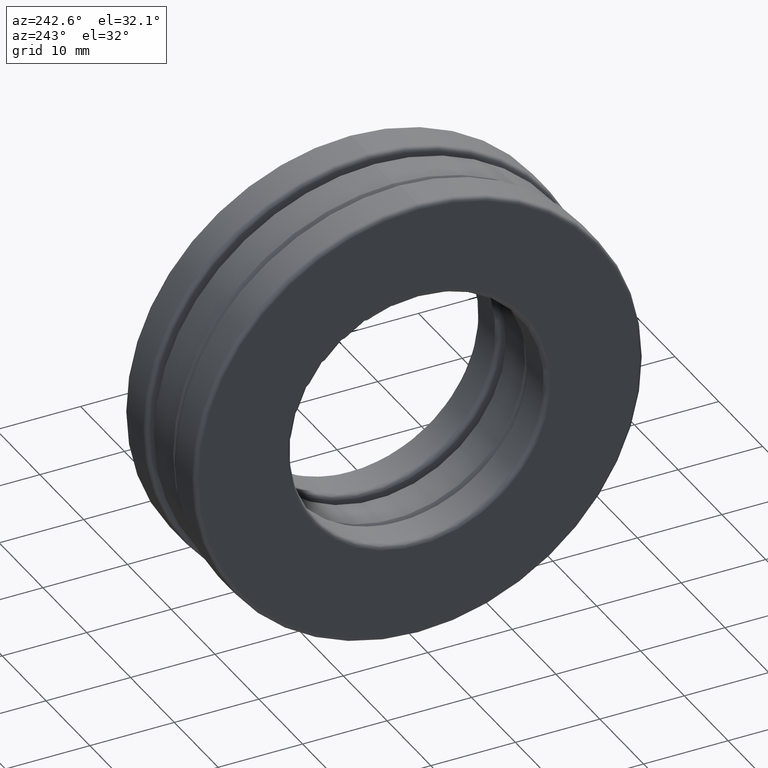
[diagram: clean part render]
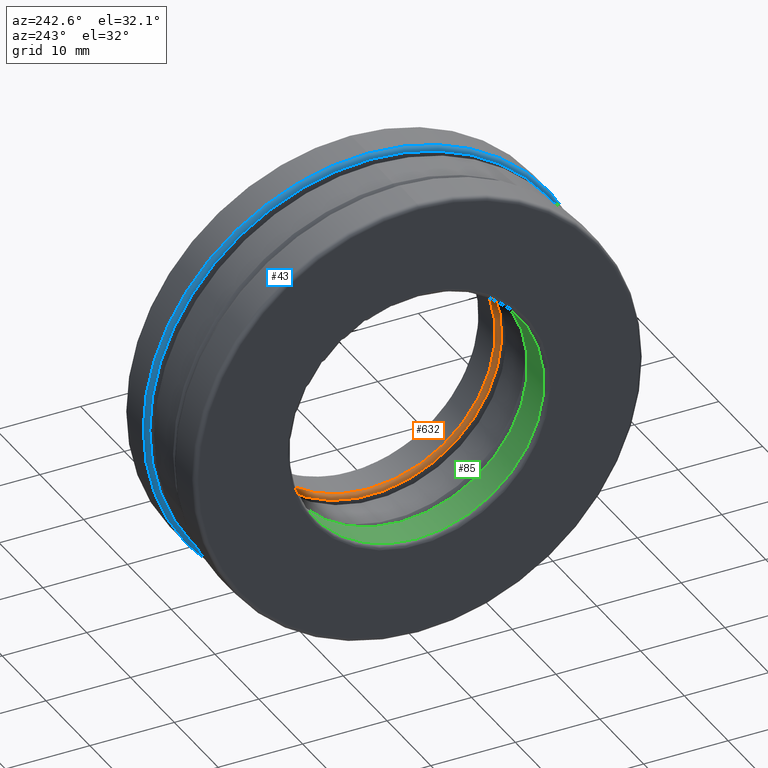
[diagram: same view with three faces highlighted in distinct colors, each labeled with its STEP entity id]
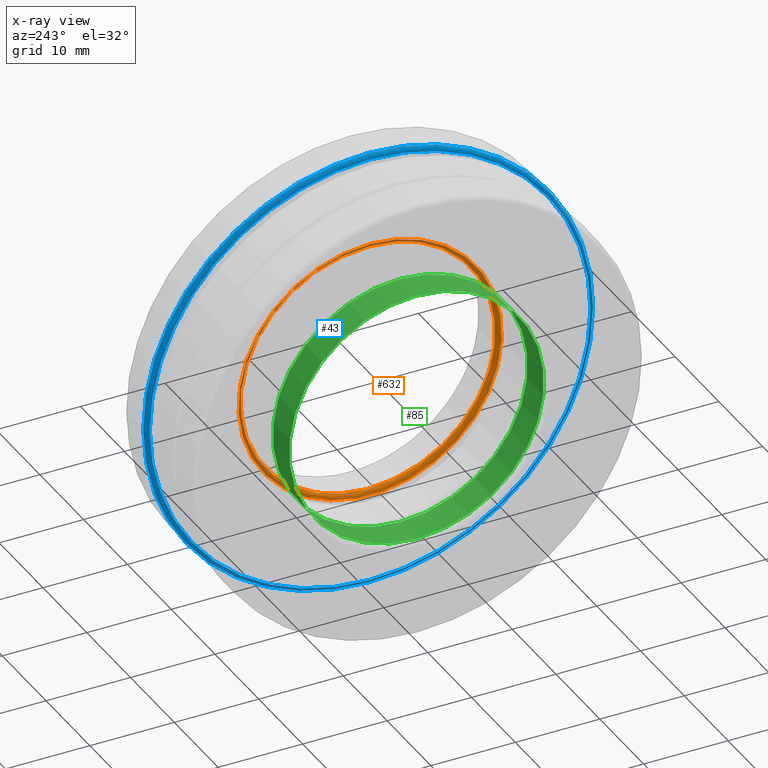
[diagram: x-ray of the same camera — body ghosted, the three highlighted faces saturated]
A machine part, auxiliary view with three faces highlighted in distinct colors.
The next image is the same camera in x-ray (body ghosted, the three faces saturated) — at least one of them is partly hidden behind the body in this view.
Their STEP definitions:

[orange] entity #632 — the highlighted toroidal blend (fillet) surface has major radius 15.5892 mm and minor (blend) radius 0.508 mm.
#75 = DIRECTION ( 'NONE',  ( 0.0000000000000000000, 0.0000000000000000000, 1.000000000000000000 ) ) ;
#81 = FACE_OUTER_BOUND ( 'NONE', #438, .T. ) ;
#124 = AXIS2_PLACEMENT_3D ( 'NONE', #431, #1124, #1243 ) ;
#296 = FACE_OUTER_BOUND ( 'NONE', #1296, .T. ) ;
#311 = CARTESIAN_POINT ( 'NONE',  ( 0.1450000000000000500, 0.0000000000000000000, 0.5937500000000000000 ) ) ;
#325 = DIRECTION ( 'NONE',  ( 0.0000000000000000000, 0.0000000000000000000, 1.000000000000000000 ) ) ;
#389 = CIRCLE ( 'NONE', #1011, 0.5937500000000000000 ) ;
#431 = CARTESIAN_POINT ( 'NONE',  ( 0.1250000000000000000, 0.0000000000000000000, 0.0000000000000000000 ) ) ;
#435 = VERTEX_POINT ( 'NONE', #1451 ) ;
#438 = EDGE_LOOP ( 'NONE', ( #948 ) ) ;
#632 = ADVANCED_FACE ( 'NONE', ( #81, #296 ), #746, .T. ) ;
#746 = TOROIDAL_SURFACE ( 'NONE', #1060, 0.6137500000000000200, 0.02000000000000005200 ) ;
#760 = EDGE_CURVE ( 'NONE', #1240, #1240, #389, .T. ) ;
#761 = CARTESIAN_POINT ( 'NONE',  ( 0.1450000000000000500, 0.0000000000000000000, 0.0000000000000000000 ) ) ;
#828 = EDGE_CURVE ( 'NONE', #435, #435, #1267, .T. ) ;
#948 = ORIENTED_EDGE ( 'NONE', *, *, #828, .T. ) ;
#990 = DIRECTION ( 'NONE',  ( -1.000000000000000000, -0.0000000000000000000, -0.0000000000000000000 ) ) ;
#1001 = DIRECTION ( 'NONE',  ( -1.000000000000000000, -0.0000000000000000000, -0.0000000000000000000 ) ) ;
#1011 = AXIS2_PLACEMENT_3D ( 'NONE', #1467, #1001, #325 ) ;
#1060 = AXIS2_PLACEMENT_3D ( 'NONE', #761, #990, #75 ) ;
#1074 = ORIENTED_EDGE ( 'NONE', *, *, #760, .F. ) ;
#1124 = DIRECTION ( 'NONE',  ( -1.000000000000000000, -0.0000000000000000000, -0.0000000000000000000 ) ) ;
#1240 = VERTEX_POINT ( 'NONE', #311 ) ;
#1243 = DIRECTION ( 'NONE',  ( 0.0000000000000000000, 0.0000000000000000000, 1.000000000000000000 ) ) ;
#1267 = CIRCLE ( 'NONE', #124, 0.6137500000000000200 ) ;
#1296 = EDGE_LOOP ( 'NONE', ( #1074 ) ) ;
#1451 = CARTESIAN_POINT ( 'NONE',  ( 0.1250000000000000000, 0.0000000000000000000, 0.6137500000000000200 ) ) ;
#1467 = CARTESIAN_POINT ( 'NONE',  ( 0.1450000000000000500, 0.0000000000000000000, 0.0000000000000000000 ) ) ;

[blue] entity #43 — the highlighted toroidal blend (fillet) surface has major radius 26.0826 mm and minor (blend) radius 0.508 mm.
#43 = ADVANCED_FACE ( 'NONE', ( #588, #1112 ), #478, .T. ) ;
#49 = AXIS2_PLACEMENT_3D ( 'NONE', #1131, #1230, #552 ) ;
#178 = DIRECTION ( 'NONE',  ( -1.000000000000000000, -0.0000000000000000000, -0.0000000000000000000 ) ) ;
#263 = EDGE_LOOP ( 'NONE', ( #559 ) ) ;
#328 = AXIS2_PLACEMENT_3D ( 'NONE', #1416, #178, #964 ) ;
#377 = EDGE_LOOP ( 'NONE', ( #682 ) ) ;
#452 = EDGE_CURVE ( 'NONE', #753, #753, #1129, .T. ) ;
#478 = TOROIDAL_SURFACE ( 'NONE', #49, 1.026875000000000000, 0.02000000000000000700 ) ;
#526 = EDGE_CURVE ( 'NONE', #1349, #1349, #1319, .T. ) ;
#552 = DIRECTION ( 'NONE',  ( 0.0000000000000000000, 0.0000000000000000000, 1.000000000000000000 ) ) ;
#559 = ORIENTED_EDGE ( 'NONE', *, *, #452, .T. ) ;
#588 = FACE_OUTER_BOUND ( 'NONE', #377, .T. ) ;
#682 = ORIENTED_EDGE ( 'NONE', *, *, #526, .F. ) ;
#753 = VERTEX_POINT ( 'NONE', #765 ) ;
#765 = CARTESIAN_POINT ( 'NONE',  ( 0.1449999999999999600, 0.0000000000000000000, 1.046875000000000000 ) ) ;
#871 = CARTESIAN_POINT ( 'NONE',  ( 0.1250000000000000000, 0.0000000000000000000, 1.026875000000000000 ) ) ;
#964 = DIRECTION ( 'NONE',  ( 0.0000000000000000000, 0.0000000000000000000, 1.000000000000000000 ) ) ;
#1112 = FACE_OUTER_BOUND ( 'NONE', #263, .T. ) ;
#1129 = CIRCLE ( 'NONE', #328, 1.046875000000000000 ) ;
#1131 = CARTESIAN_POINT ( 'NONE',  ( 0.1449999999999999600, 0.0000000000000000000, 0.0000000000000000000 ) ) ;
#1188 = AXIS2_PLACEMENT_3D ( 'NONE', #1309, #1284, #1437 ) ;
#1230 = DIRECTION ( 'NONE',  ( -1.000000000000000000, -0.0000000000000000000, -0.0000000000000000000 ) ) ;
#1284 = DIRECTION ( 'NONE',  ( -1.000000000000000000, -0.0000000000000000000, -0.0000000000000000000 ) ) ;
#1309 = CARTESIAN_POINT ( 'NONE',  ( 0.1250000000000000000, 0.0000000000000000000, 0.0000000000000000000 ) ) ;
#1319 = CIRCLE ( 'NONE', #1188, 1.026875000000000000 ) ;
#1349 = VERTEX_POINT ( 'NONE', #871 ) ;
#1416 = CARTESIAN_POINT ( 'NONE',  ( 0.1449999999999999600, 0.0000000000000000000, 0.0000000000000000000 ) ) ;
#1437 = DIRECTION ( 'NONE',  ( 0.0000000000000000000, 0.0000000000000000000, 1.000000000000000000 ) ) ;

[green] entity #85 — the highlighted cylindrical surface (bore or boss wall) has radius 15.0812 mm, axis along (-1, -0, -0).
#85 = ADVANCED_FACE ( 'NONE', ( #134, #439 ), #147, .F. ) ;
#134 = FACE_OUTER_BOUND ( 'NONE', #239, .T. ) ;
#147 = CYLINDRICAL_SURFACE ( 'NONE', #270, 0.5937500000000000000 ) ;
#152 = VERTEX_POINT ( 'NONE', #988 ) ;
#197 = CARTESIAN_POINT ( 'NONE',  ( -0.1450000000000000500, 0.0000000000000000000, 0.0000000000000000000 ) ) ;
#239 = EDGE_LOOP ( 'NONE', ( #1168 ) ) ;
#270 = AXIS2_PLACEMENT_3D ( 'NONE', #473, #805, #814 ) ;
#300 = DIRECTION ( 'NONE',  ( 0.0000000000000000000, 0.0000000000000000000, 1.000000000000000000 ) ) ;
#301 = EDGE_LOOP ( 'NONE', ( #618 ) ) ;
#415 = EDGE_CURVE ( 'NONE', #467, #467, #1180, .T. ) ;
#439 = FACE_OUTER_BOUND ( 'NONE', #301, .T. ) ;
#467 = VERTEX_POINT ( 'NONE', #654 ) ;
#473 = CARTESIAN_POINT ( 'NONE',  ( 0.0000000000000000000, 0.0000000000000000000, 0.0000000000000000000 ) ) ;
#475 = AXIS2_PLACEMENT_3D ( 'NONE', #197, #1333, #300 ) ;
#597 = EDGE_CURVE ( 'NONE', #152, #152, #1016, .T. ) ;
#618 = ORIENTED_EDGE ( 'NONE', *, *, #597, .F. ) ;
#634 = DIRECTION ( 'NONE',  ( 0.0000000000000000000, 0.0000000000000000000, 1.000000000000000000 ) ) ;
#654 = CARTESIAN_POINT ( 'NONE',  ( -0.2925000000000000400, 0.0000000000000000000, 0.5937500000000000000 ) ) ;
#805 = DIRECTION ( 'NONE',  ( -1.000000000000000000, -0.0000000000000000000, -0.0000000000000000000 ) ) ;
#814 = DIRECTION ( 'NONE',  ( 0.0000000000000000000, 0.0000000000000000000, 1.000000000000000000 ) ) ;
#988 = CARTESIAN_POINT ( 'NONE',  ( -0.1450000000000000500, 0.0000000000000000000, 0.5937500000000000000 ) ) ;
#1016 = CIRCLE ( 'NONE', #475, 0.5937500000000000000 ) ;
#1168 = ORIENTED_EDGE ( 'NONE', *, *, #415, .T. ) ;
#1169 = AXIS2_PLACEMENT_3D ( 'NONE', #1207, #1215, #634 ) ;
#1180 = CIRCLE ( 'NONE', #1169, 0.5937500000000000000 ) ;
#1207 = CARTESIAN_POINT ( 'NONE',  ( -0.2925000000000000400, 0.0000000000000000000, 0.0000000000000000000 ) ) ;
#1215 = DIRECTION ( 'NONE',  ( -1.000000000000000000, -0.0000000000000000000, -0.0000000000000000000 ) ) ;
#1333 = DIRECTION ( 'NONE',  ( -1.000000000000000000, -0.0000000000000000000, -0.0000000000000000000 ) ) ;